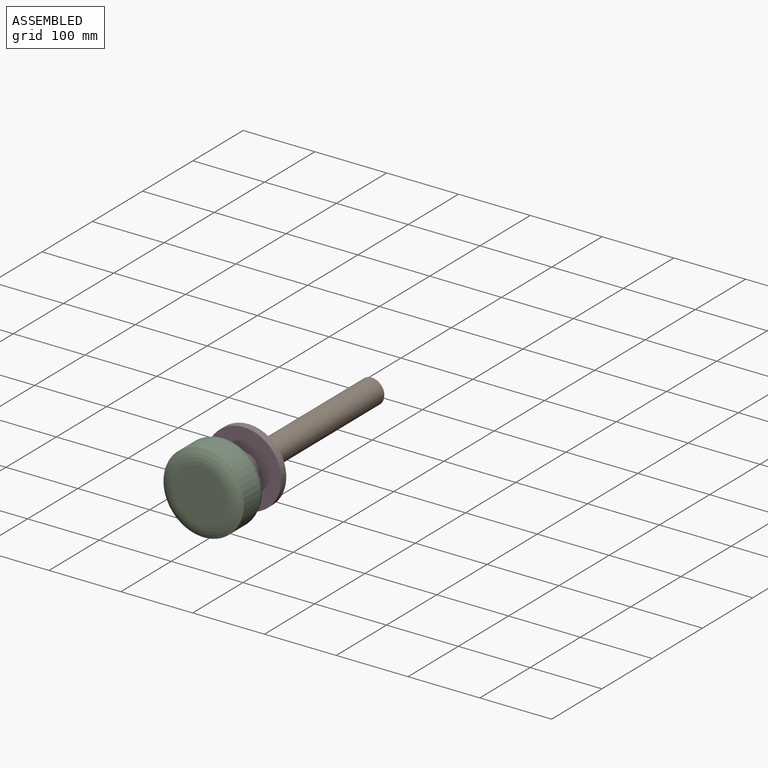
[diagram: assembled view]
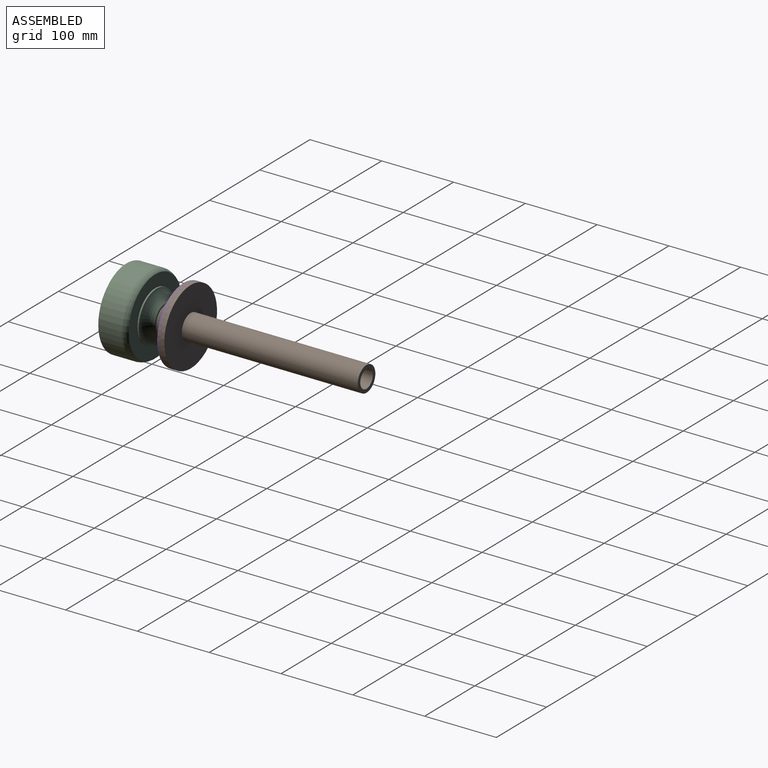
[diagram: assembled view, second angle]
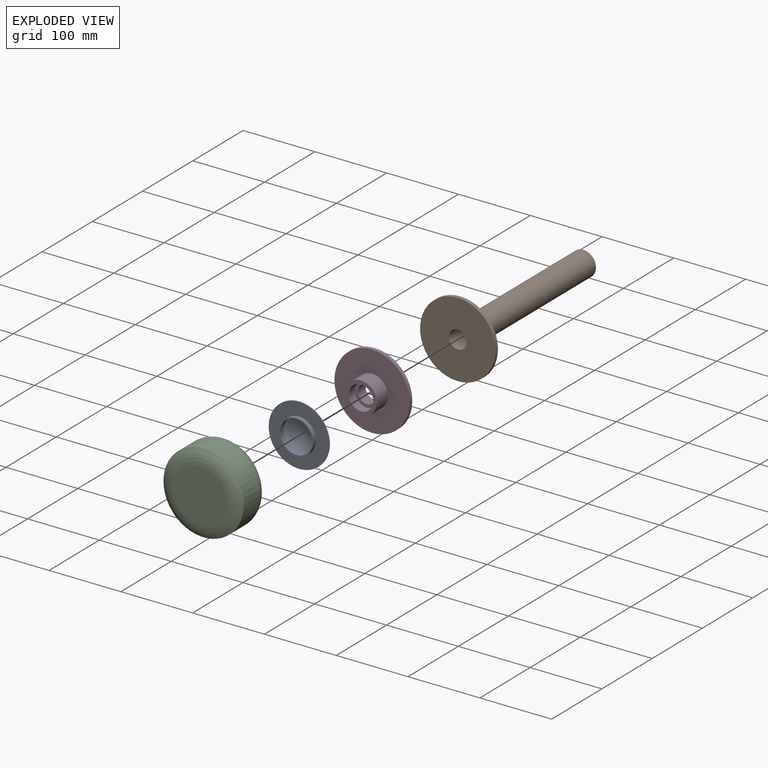
[diagram: exploded view]
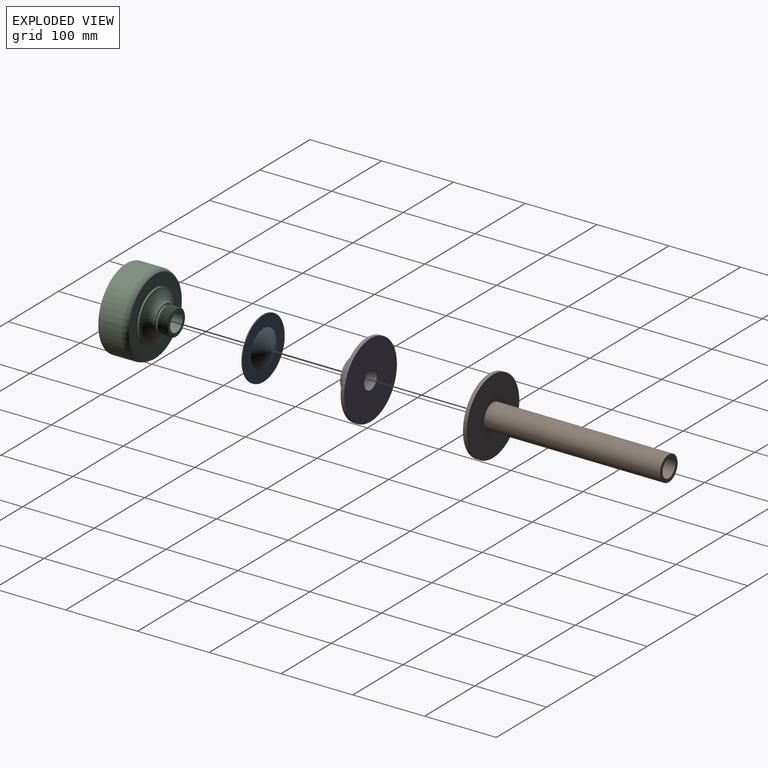
[diagram: exploded view, second angle]
ASSEMBLY  parts=4 mates=3
PART A: 8 faces, bbox 185x185x107.8 mm
  f0: plane 184.99x184.99mm, normal (0,0,1), area 3613.9mm2, adj f1,f7
  f1: revolved ~50.28x25.14mm, area 0mm2, adj f0
  f2: revolved ~44.96x22.48mm, area 0mm2, adj f3
  f3: cylinder r=22.48mm len=44.96mm, axis (0,0,1), area 1024mm2, adj f2,f4
  f4: plane 47.71x47.71mm, normal (0,0,-1), area 200.2mm2, adj f3,f5
  f5: cylinder r=23.85mm len=47.71mm, axis (0,0,1), area 863.8mm2, adj f4,f6
  f6: plane 84.44x84.44mm, normal (0,0,-1), area 3811.7mm2, adj f5,f7
  f7: cylinder r=42.22mm len=84.44mm, axis (0,0,1), area 341.1mm2, adj f0,f6
PART B: 6 faces, bbox 105x250x105 mm
  f0: cylinder r=52.5mm len=105mm, axis (0,-1,0), area 1649.3mm2, adj f1,f2
  f1: plane 105x105mm, normal (0,1,0), area 7696.9mm2, adj f0,f3
  f2: plane 105x105mm, normal (0,-1,0), area 8168.1mm2, adj f0,f5
  f3: cylinder r=17.5mm len=245mm, axis (0,1,0), area 26939.2mm2, adj f1,f4
  f4: plane 35x35mm, normal (0,1,0), area 471.2mm2, adj f3,f5
  f5: cylinder r=12.5mm len=250mm, axis (0,1,0), area 19635mm2, adj f2,f4
PART C: 54 faces, bbox 129.5x129.5x76 mm
  f0: cone r=17mm half-angle=63.4deg, axis (0,0,-1), area 122.9mm2, adj f1,f50
  f1: cone r=18mm half-angle=63.4deg, axis (0,0,1), area 122.9mm2, adj f0,f2
  f2: cone r=17mm half-angle=63.4deg, axis (0,0,-1), area 122.9mm2, adj f1,f3
  f3: cone r=18mm half-angle=63.4deg, axis (0,0,1), area 122.9mm2, adj f2,f4
  f4: cone r=17mm half-angle=63.4deg, axis (0,0,-1), area 122.9mm2, adj f3,f5
  f5: cone r=18mm half-angle=63.4deg, axis (0,0,1), area 122.9mm2, adj f4,f6
  f6: cone r=17mm half-angle=63.4deg, axis (0,0,-1), area 122.9mm2, adj f5,f7
  f7: cone r=18mm half-angle=63.4deg, axis (0,0,1), area 122.9mm2, adj f6,f8
  f8: cone r=17mm half-angle=63.4deg, axis (0,0,-1), area 122.9mm2, adj f7,f9
  f9: cone r=18mm half-angle=63.4deg, axis (0,0,1), area 122.9mm2, adj f8,f10
  f10: cone r=17mm half-angle=63.4deg, axis (0,0,-1), area 122.9mm2, adj f9,f11
  f11: cone r=18mm half-angle=63.4deg, axis (0,0,1), area 122.9mm2, adj f10,f12
  f12: cone r=17mm half-angle=63.4deg, axis (0,0,-1), area 122.9mm2, adj f11,f13
  f13: cone r=18mm half-angle=63.4deg, axis (0,0,1), area 122.9mm2, adj f12,f14
  f14: cone r=17mm half-angle=63.4deg, axis (0,0,-1), area 122.9mm2, adj f13,f15
  f15: cone r=18mm half-angle=63.4deg, axis (0,0,1), area 122.9mm2, adj f14,f16
  f16: cone r=17mm half-angle=63.4deg, axis (0,0,-1), area 122.9mm2, adj f15,f17
  f17: plane 34x34mm, normal (0,0,1), area 417mm2, adj f16,f18
  f18: cylinder r=12.5mm len=25.35mm, axis (0,0,1), area 1990.6mm2, adj f17,f19
  f19: torus R=4.05mm, axis (0,0,1), area 2894.2mm2, adj f18,f20
  f20: plane 101.75x101.75mm, normal (0,0,-1), area 5129.1mm2, adj f19,f21
  f21: cylinder r=50.88mm len=101.75mm, axis (0,0,1), area 10727.6mm2, adj f20,f22
  f22: plane 101.75x101.75mm, normal (0,0,1), area 6098.7mm2, adj f21,f23
  f23: torus R=22.75mm, axis (0,0,1), area 558.2mm2, adj f22,f24
  f24: plane 93.68x93.68mm, normal (0,0,-1), area 5226.3mm2, adj f23,f25
  f25: cylinder r=46.84mm len=93.68mm, axis (0,0,1), area 7972.5mm2, adj f24,f26
  f26: plane 93.68x93.68mm, normal (0,0,1), area 4968.4mm2, adj f25,f27
  f27: cylinder r=24.75mm len=49.5mm, axis (0,0,1), area 1103.7mm2, adj f26,f28
  f28: plane 49.5x49.5mm, normal (0,0,1), area 470.3mm2, adj f27,f29
  f29: cylinder r=21.52mm len=43.03mm, axis (0,0,1), area 959.4mm2, adj f28,f30
  f30: plane 43.03x43.03mm, normal (0,0,1), area 1454.4mm2, adj f29
  f31: plane 72.33x72.33mm, normal (0,0,-1), area 4109.3mm2, adj f32
  f32: torus R=36.17mm, axis (0,0,1), area 6197.9mm2, adj f31,f33
  f33: cylinder r=56mm len=112mm, axis (0,0,1), area 11128.7mm2, adj f32,f34
  f34: torus R=42.73mm, axis (0,0,1), area 3160.8mm2, adj f33,f35
  f35: plane 105.94x105.94mm, normal (0,0,1), area 4860.5mm2, adj f34,f36
  f36: cylinder r=35.48mm len=70.95mm, axis (0,0,1), area 445.8mm2, adj f35,f37
  f37: torus R=37.99mm, axis (0,0,1), area 3443.4mm2, adj f36,f38
  f38: plane 38x38mm, normal (0,0,1), area 226.2mm2, adj f37,f39
  f39: cylinder r=17mm len=34mm, axis (0,0,1), area 213.6mm2, adj f38,f40
  f40: cone r=18mm half-angle=63.4deg, axis (0,0,1), area 122.9mm2, adj f39,f41
  f41: cone r=17mm half-angle=63.4deg, axis (0,0,-1), area 122.9mm2, adj f40,f42
  f42: cone r=18mm half-angle=63.4deg, axis (0,0,1), area 122.9mm2, adj f41,f43
  f43: cone r=17mm half-angle=63.4deg, axis (0,0,-1), area 122.9mm2, adj f42,f44
  f44: cone r=18mm half-angle=63.4deg, axis (0,0,1), area 122.9mm2, adj f43,f45
  f45: cone r=17mm half-angle=63.4deg, axis (0,0,-1), area 122.9mm2, adj f44,f46
  f46: cone r=18mm half-angle=63.4deg, axis (0,0,1), area 122.9mm2, adj f45,f47
  f47: cone r=17mm half-angle=63.4deg, axis (0,0,-1), area 122.9mm2, adj f46,f48
  f48: cone r=18mm half-angle=63.4deg, axis (0,0,1), area 122.9mm2, adj f47,f49
  f49: cone r=17mm half-angle=63.4deg, axis (0,0,-1), area 122.9mm2, adj f48,f50
  f50: cone r=18mm half-angle=63.4deg, axis (0,0,1), area 122.9mm2, adj f0,f49
  f51: plane 44.92x44.92mm, normal (0,0,-1), area 1585mm2, adj f52
  f52: torus R=22.75mm, axis (0,0,1), area 478.1mm2, adj f51,f53
  f53: plane 40.11x40.11mm, normal (0,0,1), area 1263.8mm2, adj f52
PART D: 8 faces, bbox 105x27x105 mm
  f0: cylinder r=52.5mm len=105mm, axis (0,1,0), area 1649.3mm2, adj f2,f3
  f1: cylinder r=12.5mm len=25mm, axis (0,1,0), area 1178.1mm2, adj f3,f7
  f2: plane 105x105mm, normal (0,-1,0), area 7138.5mm2, adj f0,f5
  f3: plane 105x105mm, normal (0,1,0), area 8168.1mm2, adj f0,f1
  f4: cylinder r=17mm len=34mm, axis (0,1,0), area 1281.8mm2, adj f6,f7
  f5: cylinder r=22mm len=44mm, axis (0,1,0), area 3041.1mm2, adj f2,f6
  f6: plane 44x44mm, normal (0,-1,0), area 612.6mm2, adj f4,f5
  f7: plane 34x34mm, normal (0,-1,0), area 417mm2, adj f1,f4
PLACE A rot(axis=(-1,0,0),90deg) t=(0.06,34.18,-34.1)mm
PLACE B t=(0.06,-980.9,-34.1)mm
PLACE C rot(axis=(-1,0,0),90deg) t=(0.06,34.1,-34.1)mm
PLACE D t=(0.06,49.1,-34.1)mm
MATE fastened C.f0 <-> A.f3  axis (0,1,0) through (0.06,-4.63,-34.1)mm
MATE fastened D.f1 <-> C.f0  axis (0,-1,0) through (0.06,34.1,-34.1)mm
MATE fastened B.f5 <-> D.f1  axis (0,1,0) through (0.06,49.1,-34.1)mm
